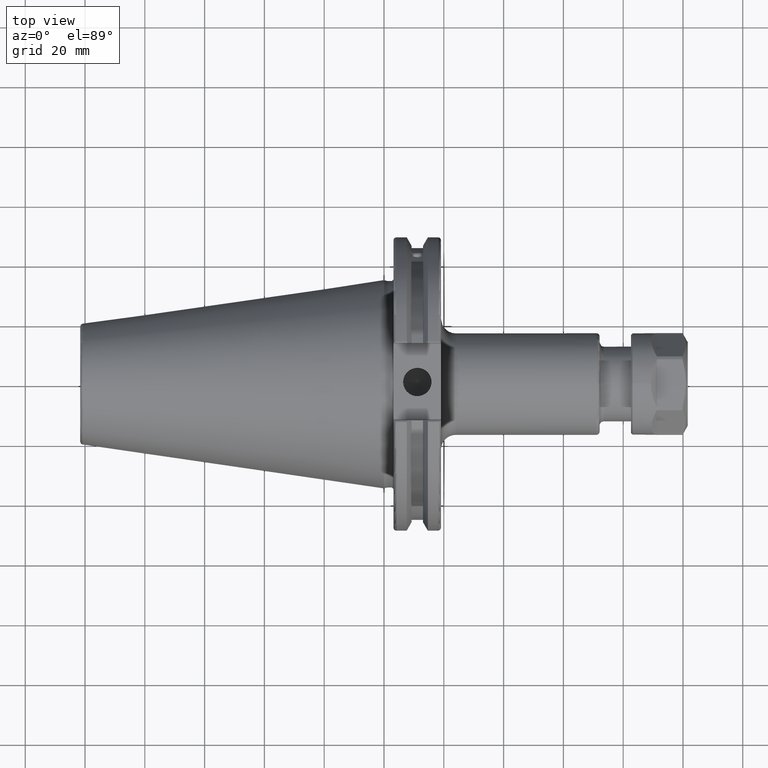
[diagram: clean part render]
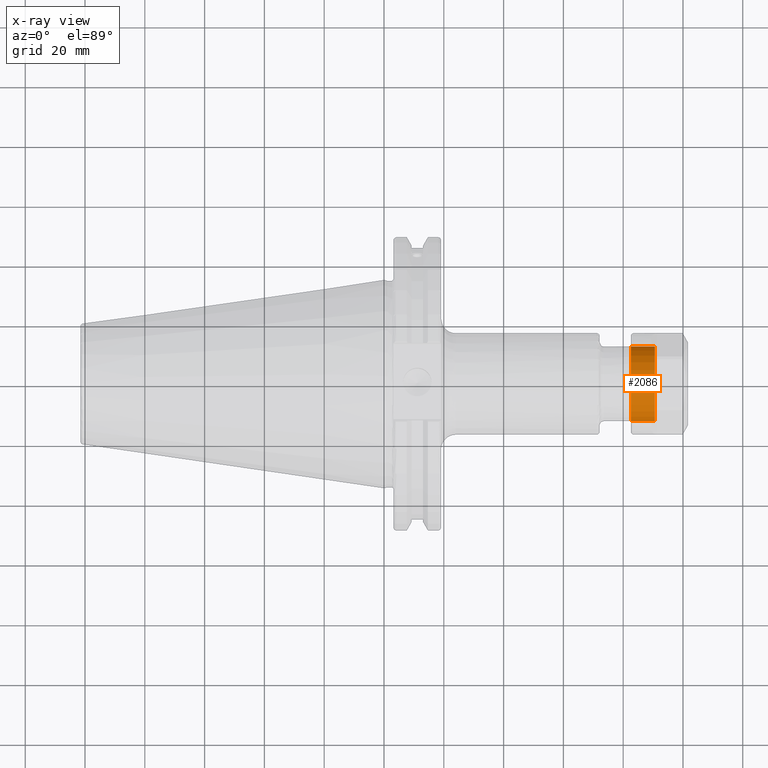
[diagram: x-ray — body ghosted, one internal face saturated and labeled with its STEP entity id]
A machine part, top view, then the same camera in x-ray: the body is ghosted and one INTERNAL B-rep face — a face not visible from any outside direction — is saturated and labeled: STEP entity #2086.
In plain terms, the highlighted cylindrical surface (bore or boss wall) has radius 12.5 mm, axis along (-1, 0, 0).
Its self-contained STEP definition (entity closure, byte-faithful):
#174=CYLINDRICAL_SURFACE('',#2392,12.5);
#373=FACE_OUTER_BOUND('',#516,.T.);
#516=EDGE_LOOP('',(#1948,#1949,#1950,#1951));
#638=LINE('',#4092,#758);
#758=VECTOR('',#2984,12.5);
#863=CIRCLE('',#2393,12.5);
#864=CIRCLE('',#2394,12.5);
#1062=VERTEX_POINT('',#4089);
#1063=VERTEX_POINT('',#4091);
#1358=EDGE_CURVE('',#1062,#1062,#863,.T.);
#1359=EDGE_CURVE('',#1062,#1063,#638,.T.);
#1360=EDGE_CURVE('',#1063,#1063,#864,.T.);
#1948=ORIENTED_EDGE('',*,*,#1358,.F.);
#1949=ORIENTED_EDGE('',*,*,#1359,.T.);
#1950=ORIENTED_EDGE('',*,*,#1360,.T.);
#1951=ORIENTED_EDGE('',*,*,#1359,.F.);
#2086=ADVANCED_FACE('',(#373),#174,.T.);
#2392=AXIS2_PLACEMENT_3D('',#4088,#2980,#2981);
#2393=AXIS2_PLACEMENT_3D('',#4090,#2982,#2983);
#2394=AXIS2_PLACEMENT_3D('',#4093,#2985,#2986);
#2980=DIRECTION('center_axis',(-1.,0.,0.));
#2981=DIRECTION('ref_axis',(0.,-1.,0.));
#2982=DIRECTION('center_axis',(-1.,0.,0.));
#2983=DIRECTION('ref_axis',(0.,1.,0.));
#2984=DIRECTION('',(1.,0.,0.));
#2985=DIRECTION('center_axis',(-1.,0.,0.));
#2986=DIRECTION('ref_axis',(0.,1.,0.));
#4088=CARTESIAN_POINT('Origin',(-9.5,0.,0.));
#4089=CARTESIAN_POINT('',(-9.5,12.5,-1.53080849893419E-15));
#4090=CARTESIAN_POINT('Origin',(-9.5,0.,0.));
#4091=CARTESIAN_POINT('',(-1.5,12.5,-1.53080849893419E-15));
#4092=CARTESIAN_POINT('',(-9.5,12.5,-1.53080849893419E-15));
#4093=CARTESIAN_POINT('Origin',(-1.5,0.,0.));